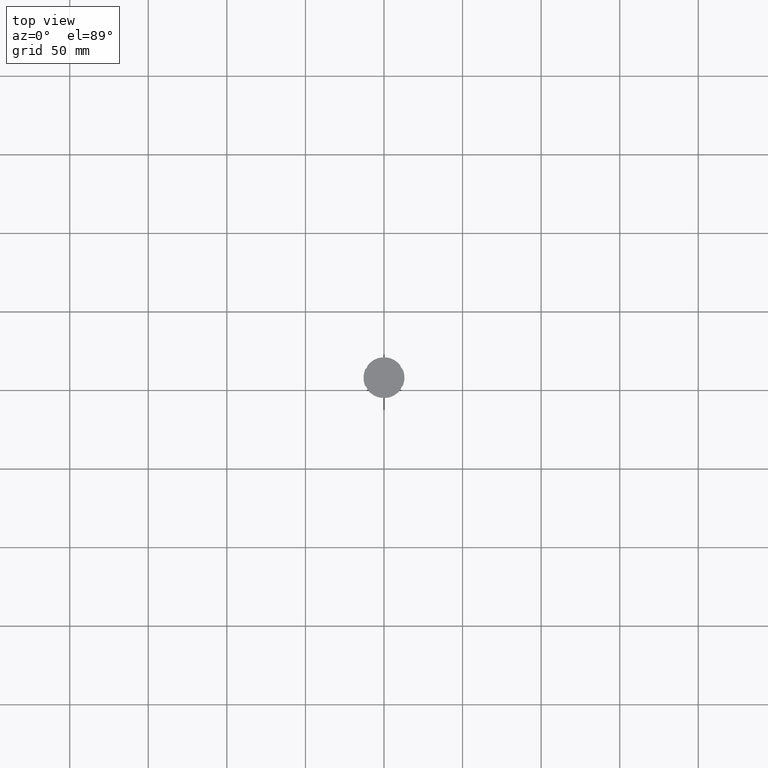
[diagram: clean part render]
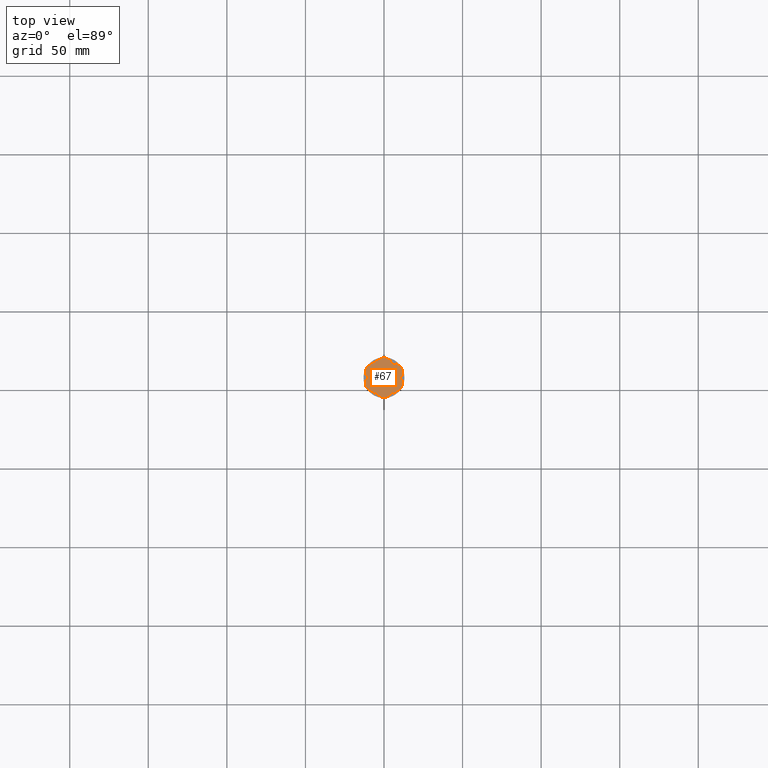
[diagram: same view with one face highlighted and labeled with its STEP entity id]
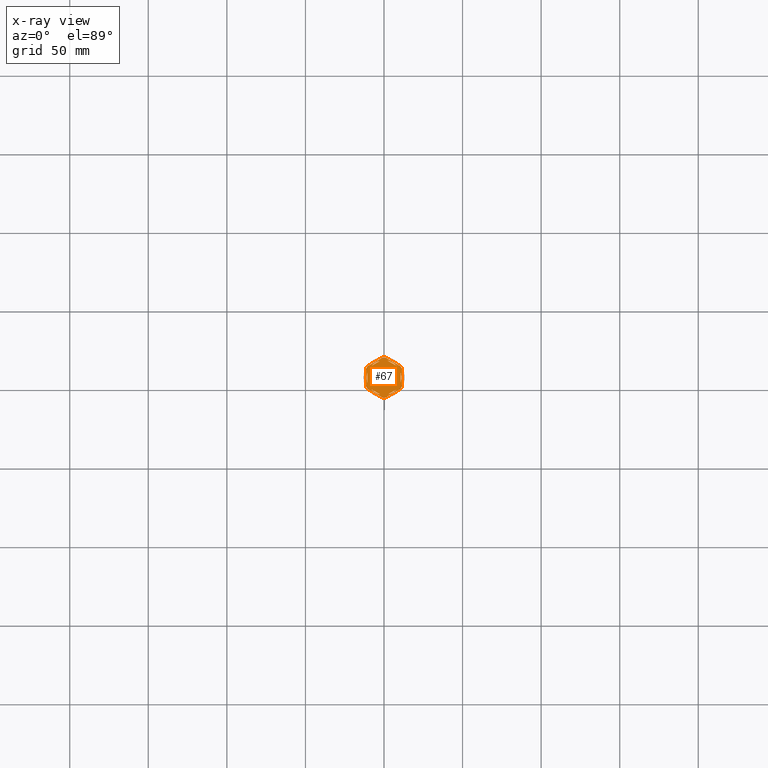
[diagram: x-ray of the same camera — body ghosted, the highlighted face saturated]
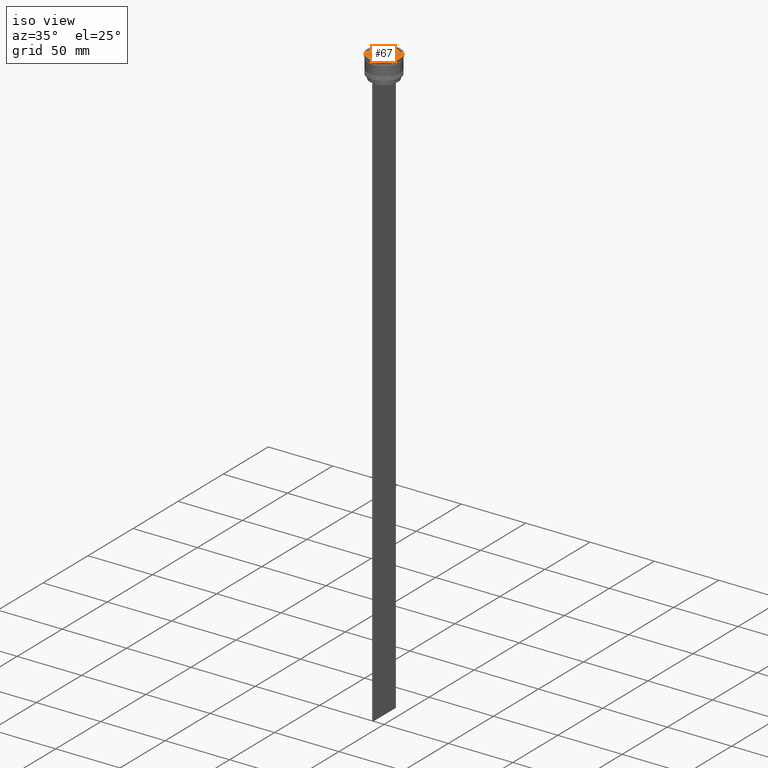
[diagram: same view with one face highlighted and labeled with its STEP entity id]
A machine part, top view. The second image highlights one B-rep face of the part: STEP entity #67.
The next image is the same camera in x-ray: the body ghosted, the highlighted face saturated — about 0% of this face is hidden behind the body in this view.
A second angle (iso view) of the same face is appended — the face is thin or edge-on in the first view.
In plain terms, the highlighted planar face has unit normal (0, 0, 1).
Its self-contained STEP definition (entity closure, byte-faithful):
#3 = VECTOR ( 'NONE', #314, 1000.000000000000000 ) ;
#11 = CARTESIAN_POINT ( 'NONE',  ( 2.410545827099861871, 10.73262637081210791, -1.000000000000000888 ) ) ;
#12 = VECTOR ( 'NONE', #2686, 999.9999999999998863 ) ;
#23 = CARTESIAN_POINT ( 'NONE',  ( 2.410545827099865868, -10.73262637081210791, -1.000000000000000888 ) ) ;
#28 = EDGE_LOOP ( 'NONE', ( #2410, #2710, #1000, #2122, #1527, #2747, #1145, #1912, #1763, #1074, #2809, #438 ) ) ;
#42 = EDGE_CURVE ( 'NONE', #2401, #1849, #214, .T. ) ;
#47 = AXIS2_PLACEMENT_3D ( 'NONE', #2112, #107, #1681 ) ;
#50 = DIRECTION ( 'NONE',  ( 1.000000000000000000, -1.776356839400250465E-14, 0.000000000000000000 ) ) ;
#61 = VECTOR ( 'NONE', #1298, 1000.000000000000000 ) ;
#67 = ADVANCED_FACE ( 'NONE', ( #1668, #829, #580, #2344, #2598, #387, #2358 ), #137, .T. ) ;
#89 = DIRECTION ( 'NONE',  ( 1.000000000000000000, 0.000000000000000000, 0.000000000000000000 ) ) ;
#92 = EDGE_LOOP ( 'NONE', ( #599, #131 ) ) ;
#94 = CARTESIAN_POINT ( 'NONE',  ( 11.49999999999999822, -5.388877434122996135, -1.000000000000000000 ) ) ;
#107 = DIRECTION ( 'NONE',  ( -0.000000000000000000, -0.000000000000000000, -1.000000000000000000 ) ) ;
#120 = ORIENTED_EDGE ( 'NONE', *, *, #1487, .F. ) ;
#129 = CARTESIAN_POINT ( 'NONE',  ( -2.410545827099867200, 10.73262637081210613, -1.000000000000000888 ) ) ;
#131 = ORIENTED_EDGE ( 'NONE', *, *, #2383, .F. ) ;
#137 = PLANE ( 'NONE',  #1565 ) ;
#154 = CARTESIAN_POINT ( 'NONE',  ( 0.000000000000000000, 0.000000000000000000, -1.000000000000000000 ) ) ;
#161 = ORIENTED_EDGE ( 'NONE', *, *, #803, .F. ) ;
#165 = VERTEX_POINT ( 'NONE', #2639 ) ;
#187 = EDGE_CURVE ( 'NONE', #2468, #165, #1100, .T. ) ;
#204 = AXIS2_PLACEMENT_3D ( 'NONE', #2026, #691, #2238 ) ;
#212 = DIRECTION ( 'NONE',  ( -0.8660254037844385966, -0.5000000000000001110, 0.000000000000000000 ) ) ;
#214 = CIRCLE ( 'NONE', #1994, 12.69999999999999929 ) ;
#217 = CARTESIAN_POINT ( 'NONE',  ( 0.000000000000000000, 0.000000000000000000, -1.000000000000000000 ) ) ;
#229 = CARTESIAN_POINT ( 'NONE',  ( 0.000000000000000000, 0.000000000000000000, -1.000000000000000000 ) ) ;
#314 = DIRECTION ( 'NONE',  ( 1.306360520641008153E-16, 1.000000000000000000, 0.000000000000000000 ) ) ;
#321 = CARTESIAN_POINT ( 'NONE',  ( 10.41690475583121156, 7.264853426459550789, -1.000000000000000000 ) ) ;
#326 = CARTESIAN_POINT ( 'NONE',  ( 0.000000000000000000, 0.000000000000000000, -1.000000000000000000 ) ) ;
#339 = AXIS2_PLACEMENT_3D ( 'NONE', #2371, #2586, #390 ) ;
#343 = DIRECTION ( 'NONE',  ( 0.000000000000000000, 0.000000000000000000, 1.000000000000000000 ) ) ;
#344 = DIRECTION ( 'NONE',  ( -0.8660254037844388186, 0.4999999999999997224, 0.000000000000000000 ) ) ;
#360 = DIRECTION ( 'NONE',  ( 0.000000000000000000, 0.000000000000000000, 1.000000000000000000 ) ) ;
#378 = DIRECTION ( 'NONE',  ( 0.000000000000000000, 0.000000000000000000, 1.000000000000000000 ) ) ;
#380 = VECTOR ( 'NONE', #2680, 1000.000000000000227 ) ;
#387 = FACE_BOUND ( 'NONE', #1864, .T. ) ;
#390 = DIRECTION ( 'NONE',  ( 1.000000000000000000, 0.000000000000000000, 0.000000000000000000 ) ) ;
#434 = AXIS2_PLACEMENT_3D ( 'NONE', #326, #2674, #466 ) ;
#438 = ORIENTED_EDGE ( 'NONE', *, *, #42, .F. ) ;
#449 = EDGE_CURVE ( 'NONE', #1295, #1116, #1731, .T. ) ;
#455 = LINE ( 'NONE', #2542, #12 ) ;
#466 = DIRECTION ( 'NONE',  ( 1.000000000000000000, 0.000000000000000000, 0.000000000000000000 ) ) ;
#471 = AXIS2_PLACEMENT_3D ( 'NONE', #2752, #548, #50 ) ;
#478 = VERTEX_POINT ( 'NONE', #557 ) ;
#500 = CARTESIAN_POINT ( 'NONE',  ( 0.000000000000000000, 0.000000000000000000, -1.000000000000000000 ) ) ;
#514 = VECTOR ( 'NONE', #1006, 1000.000000000000000 ) ;
#539 = ORIENTED_EDGE ( 'NONE', *, *, #2500, .F. ) ;
#548 = DIRECTION ( 'NONE',  ( -0.000000000000000000, -0.000000000000000000, -1.000000000000000000 ) ) ;
#557 = CARTESIAN_POINT ( 'NONE',  ( 11.49999999999999822, 5.388877434122992582, -1.000000000000000000 ) ) ;
#561 = LINE ( 'NONE', #1733, #1782 ) ;
#566 = ORIENTED_EDGE ( 'NONE', *, *, #187, .F. ) ;
#580 = FACE_BOUND ( 'NONE', #1726, .T. ) ;
#599 = ORIENTED_EDGE ( 'NONE', *, *, #2404, .F. ) ;
#609 = LINE ( 'NONE', #1934, #514 ) ;
#616 = AXIS2_PLACEMENT_3D ( 'NONE', #2683, #2208, #2431 ) ;
#644 = DIRECTION ( 'NONE',  ( 1.000000000000000000, 7.105427357601001859E-15, 0.000000000000000000 ) ) ;
#684 = CARTESIAN_POINT ( 'NONE',  ( 0.000000000000000000, 13.27905619136138959, -1.000000000000000000 ) ) ;
#691 = DIRECTION ( 'NONE',  ( 0.000000000000000000, 0.000000000000000000, 1.000000000000000000 ) ) ;
#742 = CARTESIAN_POINT ( 'NONE',  ( -8.089454172900133244, -7.453907108661111280, -1.000000000000000888 ) ) ;
#753 = LINE ( 'NONE', #1433, #3 ) ;
#759 = VECTOR ( 'NONE', #2528, 1000.000000000000000 ) ;
#785 = DIRECTION ( 'NONE',  ( 1.000000000000000000, 0.000000000000000000, 0.000000000000000000 ) ) ;
#803 = EDGE_CURVE ( 'NONE', #1500, #1185, #2021, .T. ) ;
#826 = VERTEX_POINT ( 'NONE', #129 ) ;
#829 = FACE_BOUND ( 'NONE', #1169, .T. ) ;
#849 = AXIS2_PLACEMENT_3D ( 'NONE', #1290, #378, #2827 ) ;
#898 = CARTESIAN_POINT ( 'NONE',  ( 8.089454172900135021, -7.453907108661109504, -1.000000000000000888 ) ) ;
#909 = CARTESIAN_POINT ( 'NONE',  ( -2.410545827099876082, -10.73262637081210435, -1.000000000000000888 ) ) ;
#950 = CARTESIAN_POINT ( 'NONE',  ( -11.50000000000000000, -5.388877434122992582, -1.000000000000000000 ) ) ;
#955 = ORIENTED_EDGE ( 'NONE', *, *, #2613, .F. ) ;
#956 = EDGE_CURVE ( 'NONE', #1237, #2304, #2200, .T. ) ;
#958 = CARTESIAN_POINT ( 'NONE',  ( -10.41690475583121689, 7.264853426459546348, -1.000000000000000000 ) ) ;
#969 = LINE ( 'NONE', #2735, #759 ) ;
#979 = DIRECTION ( 'NONE',  ( 0.000000000000000000, 0.000000000000000000, 1.000000000000000000 ) ) ;
#982 = ORIENTED_EDGE ( 'NONE', *, *, #2054, .F. ) ;
#992 = VERTEX_POINT ( 'NONE', #11 ) ;
#993 = AXIS2_PLACEMENT_3D ( 'NONE', #229, #2465, #1768 ) ;
#1000 = ORIENTED_EDGE ( 'NONE', *, *, #1265, .T. ) ;
#1006 = DIRECTION ( 'NONE',  ( -0.8660254037844384856, 0.5000000000000002220, 0.000000000000000000 ) ) ;
#1074 = ORIENTED_EDGE ( 'NONE', *, *, #2388, .F. ) ;
#1091 = CIRCLE ( 'NONE', #434, 12.69999999999999929 ) ;
#1100 = CIRCLE ( 'NONE', #2530, 11.00000000000000000 ) ;
#1116 = VERTEX_POINT ( 'NONE', #958 ) ;
#1129 = EDGE_CURVE ( 'NONE', #2401, #478, #753, .T. ) ;
#1145 = ORIENTED_EDGE ( 'NONE', *, *, #2352, .T. ) ;
#1164 = CARTESIAN_POINT ( 'NONE',  ( 10.49999999999999467, -3.278719262151014835, -1.000000000000000888 ) ) ;
#1169 = EDGE_LOOP ( 'NONE', ( #161, #539 ) ) ;
#1184 = EDGE_CURVE ( 'NONE', #1623, #478, #2608, .T. ) ;
#1185 = VERTEX_POINT ( 'NONE', #1447 ) ;
#1193 = ORIENTED_EDGE ( 'NONE', *, *, #1571, .F. ) ;
#1204 = ORIENTED_EDGE ( 'NONE', *, *, #1249, .F. ) ;
#1211 = CARTESIAN_POINT ( 'NONE',  ( 1.083095244168781557, 12.65373086058254160, -1.000000000000000000 ) ) ;
#1225 = CIRCLE ( 'NONE', #2426, 11.00000000000000000 ) ;
#1231 = VECTOR ( 'NONE', #2446, 1000.000000000000114 ) ;
#1237 = VERTEX_POINT ( 'NONE', #2776 ) ;
#1249 = EDGE_CURVE ( 'NONE', #2030, #2035, #609, .T. ) ;
#1256 = VERTEX_POINT ( 'NONE', #2161 ) ;
#1265 = EDGE_CURVE ( 'NONE', #1623, #2304, #561, .T. ) ;
#1277 = CARTESIAN_POINT ( 'NONE',  ( 8.089454172900138573, 7.453907108661105063, -1.000000000000000888 ) ) ;
#1278 = CIRCLE ( 'NONE', #2073, 11.00000000000000000 ) ;
#1287 = ORIENTED_EDGE ( 'NONE', *, *, #2464, .F. ) ;
#1290 = CARTESIAN_POINT ( 'NONE',  ( 0.000000000000000000, 0.000000000000000000, -1.000000000000000000 ) ) ;
#1295 = VERTEX_POINT ( 'NONE', #2134 ) ;
#1298 = DIRECTION ( 'NONE',  ( -1.430775808321104180E-16, -1.000000000000000000, 0.000000000000000000 ) ) ;
#1316 = CIRCLE ( 'NONE', #2020, 12.69999999999999929 ) ;
#1410 = VECTOR ( 'NONE', #212, 1000.000000000000114 ) ;
#1421 = VERTEX_POINT ( 'NONE', #898 ) ;
#1433 = CARTESIAN_POINT ( 'NONE',  ( 11.49999999999999822, -6.639528095680694797, -1.000000000000000000 ) ) ;
#1446 = EDGE_CURVE ( 'NONE', #1256, #2266, #1815, .T. ) ;
#1447 = CARTESIAN_POINT ( 'NONE',  ( 10.49999999999999467, 3.278719262151012170, -1.000000000000000888 ) ) ;
#1449 = EDGE_CURVE ( 'NONE', #1256, #1948, #1316, .T. ) ;
#1454 = LINE ( 'NONE', #1900, #1933 ) ;
#1479 = DIRECTION ( 'NONE',  ( 1.000000000000000000, 0.000000000000000000, 0.000000000000000000 ) ) ;
#1482 = CARTESIAN_POINT ( 'NONE',  ( -10.49999999999999822, 3.278719262151000624, -1.000000000000000888 ) ) ;
#1487 = EDGE_CURVE ( 'NONE', #2035, #2030, #1225, .T. ) ;
#1500 = VERTEX_POINT ( 'NONE', #1164 ) ;
#1516 = CIRCLE ( 'NONE', #339, 11.00000000000000000 ) ;
#1521 = CARTESIAN_POINT ( 'NONE',  ( 0.000000000000000000, 0.000000000000000000, -1.000000000000000000 ) ) ;
#1523 = CARTESIAN_POINT ( 'NONE',  ( 0.000000000000000000, 0.000000000000000000, -1.000000000000000000 ) ) ;
#1527 = ORIENTED_EDGE ( 'NONE', *, *, #1770, .T. ) ;
#1565 = AXIS2_PLACEMENT_3D ( 'NONE', #154, #343, #2550 ) ;
#1571 = EDGE_CURVE ( 'NONE', #1421, #2684, #2296, .T. ) ;
#1623 = VERTEX_POINT ( 'NONE', #321 ) ;
#1632 = VERTEX_POINT ( 'NONE', #2582 ) ;
#1642 = CARTESIAN_POINT ( 'NONE',  ( -2.602085213965210642E-15, -12.12435565298214080, -1.000000000000000888 ) ) ;
#1646 = EDGE_LOOP ( 'NONE', ( #120, #1204 ) ) ;
#1668 = FACE_BOUND ( 'NONE', #92, .T. ) ;
#1681 = DIRECTION ( 'NONE',  ( 1.000000000000000000, 0.000000000000000000, 0.000000000000000000 ) ) ;
#1689 = VECTOR ( 'NONE', #2315, 1000.000000000000000 ) ;
#1726 = EDGE_LOOP ( 'NONE', ( #2192, #1193 ) ) ;
#1731 = CIRCLE ( 'NONE', #47, 12.69999999999999929 ) ;
#1733 = CARTESIAN_POINT ( 'NONE',  ( 11.50000000000000000, 6.639528095680698350, -1.000000000000000000 ) ) ;
#1760 = CARTESIAN_POINT ( 'NONE',  ( -1.083095244168779780, -12.65373086058253982, -1.000000000000000000 ) ) ;
#1763 = ORIENTED_EDGE ( 'NONE', *, *, #1446, .T. ) ;
#1768 = DIRECTION ( 'NONE',  ( 1.000000000000000000, 0.000000000000000000, 0.000000000000000000 ) ) ;
#1770 = EDGE_CURVE ( 'NONE', #1237, #1116, #2409, .T. ) ;
#1782 = VECTOR ( 'NONE', #344, 1000.000000000000000 ) ;
#1809 = EDGE_LOOP ( 'NONE', ( #566, #982, #955 ) ) ;
#1815 = LINE ( 'NONE', #2002, #380 ) ;
#1849 = VERTEX_POINT ( 'NONE', #2821 ) ;
#1864 = EDGE_LOOP ( 'NONE', ( #1980, #1287 ) ) ;
#1900 = CARTESIAN_POINT ( 'NONE',  ( -10.49999999999999822, 6.062177826491068622, -1.000000000000000888 ) ) ;
#1912 = ORIENTED_EDGE ( 'NONE', *, *, #1449, .F. ) ;
#1933 = VECTOR ( 'NONE', #2594, 1000.000000000000000 ) ;
#1934 = CARTESIAN_POINT ( 'NONE',  ( -10.49999999999999822, -6.062177826491068622, -1.000000000000000888 ) ) ;
#1948 = VERTEX_POINT ( 'NONE', #950 ) ;
#1980 = ORIENTED_EDGE ( 'NONE', *, *, #2520, .F. ) ;
#1994 = AXIS2_PLACEMENT_3D ( 'NONE', #2540, #2775, #1479 ) ;
#2001 = DIRECTION ( 'NONE',  ( 1.000000000000000000, 0.000000000000000000, 0.000000000000000000 ) ) ;
#2002 = CARTESIAN_POINT ( 'NONE',  ( -11.50000000000000000, -6.639528095680696573, -1.000000000000000000 ) ) ;
#2020 = AXIS2_PLACEMENT_3D ( 'NONE', #1521, #2845, #644 ) ;
#2021 = CIRCLE ( 'NONE', #849, 11.00000000000000000 ) ;
#2026 = CARTESIAN_POINT ( 'NONE',  ( 0.000000000000000000, 0.000000000000000000, -1.000000000000000000 ) ) ;
#2030 = VERTEX_POINT ( 'NONE', #909 ) ;
#2035 = VERTEX_POINT ( 'NONE', #742 ) ;
#2054 = EDGE_CURVE ( 'NONE', #1632, #2468, #1454, .T. ) ;
#2073 = AXIS2_PLACEMENT_3D ( 'NONE', #1523, #360, #785 ) ;
#2112 = CARTESIAN_POINT ( 'NONE',  ( 0.000000000000000000, 0.000000000000000000, -1.000000000000000000 ) ) ;
#2119 = LINE ( 'NONE', #2251, #1231 ) ;
#2122 = ORIENTED_EDGE ( 'NONE', *, *, #956, .F. ) ;
#2134 = CARTESIAN_POINT ( 'NONE',  ( -11.50000000000000000, 5.388877434122992582, -1.000000000000000000 ) ) ;
#2161 = CARTESIAN_POINT ( 'NONE',  ( -10.41690475583121334, -7.264853426459548125, -1.000000000000000000 ) ) ;
#2163 = CARTESIAN_POINT ( 'NONE',  ( 10.49999999999999289, -6.062177826491073063, -1.000000000000000888 ) ) ;
#2192 = ORIENTED_EDGE ( 'NONE', *, *, #2538, .F. ) ;
#2200 = CIRCLE ( 'NONE', #616, 12.69999999999999929 ) ;
#2208 = DIRECTION ( 'NONE',  ( -0.000000000000000000, -0.000000000000000000, -1.000000000000000000 ) ) ;
#2238 = DIRECTION ( 'NONE',  ( 1.000000000000000000, 0.000000000000000000, 0.000000000000000000 ) ) ;
#2251 = CARTESIAN_POINT ( 'NONE',  ( 5.612359739892467248E-18, -13.27905619136138959, -1.000000000000000000 ) ) ;
#2266 = VERTEX_POINT ( 'NONE', #1760 ) ;
#2269 = DIRECTION ( 'NONE',  ( -0.8660254037844387076, -0.4999999999999999445, 0.000000000000000000 ) ) ;
#2273 = VERTEX_POINT ( 'NONE', #1277 ) ;
#2296 = LINE ( 'NONE', #1642, #2382 ) ;
#2304 = VERTEX_POINT ( 'NONE', #1211 ) ;
#2315 = DIRECTION ( 'NONE',  ( 0.000000000000000000, -1.000000000000000000, 0.000000000000000000 ) ) ;
#2327 = CARTESIAN_POINT ( 'NONE',  ( -11.50000000000000000, 6.639528095680691244, -1.000000000000000000 ) ) ;
#2330 = EDGE_CURVE ( 'NONE', #2519, #1849, #2119, .T. ) ;
#2344 = FACE_BOUND ( 'NONE', #1646, .T. ) ;
#2346 = CARTESIAN_POINT ( 'NONE',  ( -8.089454172900135021, 7.453907108661106840, -1.000000000000000888 ) ) ;
#2352 = EDGE_CURVE ( 'NONE', #1295, #1948, #2768, .T. ) ;
#2358 = FACE_OUTER_BOUND ( 'NONE', #28, .T. ) ;
#2371 = CARTESIAN_POINT ( 'NONE',  ( 0.000000000000000000, 0.000000000000000000, -1.000000000000000000 ) ) ;
#2382 = VECTOR ( 'NONE', #2269, 999.9999999999998863 ) ;
#2383 = EDGE_CURVE ( 'NONE', #992, #2273, #455, .T. ) ;
#2388 = EDGE_CURVE ( 'NONE', #2519, #2266, #1091, .T. ) ;
#2401 = VERTEX_POINT ( 'NONE', #94 ) ;
#2404 = EDGE_CURVE ( 'NONE', #2273, #992, #2703, .T. ) ;
#2409 = LINE ( 'NONE', #684, #1410 ) ;
#2410 = ORIENTED_EDGE ( 'NONE', *, *, #1129, .T. ) ;
#2426 = AXIS2_PLACEMENT_3D ( 'NONE', #500, #979, #89 ) ;
#2431 = DIRECTION ( 'NONE',  ( 1.000000000000000000, 1.243449787580175325E-14, 0.000000000000000000 ) ) ;
#2446 = DIRECTION ( 'NONE',  ( 0.8660254037844385966, 0.4999999999999999445, 0.000000000000000000 ) ) ;
#2464 = EDGE_CURVE ( 'NONE', #2588, #826, #969, .T. ) ;
#2465 = DIRECTION ( 'NONE',  ( 0.000000000000000000, 0.000000000000000000, 1.000000000000000000 ) ) ;
#2468 = VERTEX_POINT ( 'NONE', #1482 ) ;
#2500 = EDGE_CURVE ( 'NONE', #1185, #1500, #2617, .T. ) ;
#2519 = VERTEX_POINT ( 'NONE', #2798 ) ;
#2520 = EDGE_CURVE ( 'NONE', #826, #2588, #1278, .T. ) ;
#2528 = DIRECTION ( 'NONE',  ( 0.8660254037844385966, 0.5000000000000001110, -0.000000000000000000 ) ) ;
#2530 = AXIS2_PLACEMENT_3D ( 'NONE', #217, #2614, #2001 ) ;
#2538 = EDGE_CURVE ( 'NONE', #2684, #1421, #1516, .T. ) ;
#2540 = CARTESIAN_POINT ( 'NONE',  ( 0.000000000000000000, 0.000000000000000000, -1.000000000000000000 ) ) ;
#2542 = CARTESIAN_POINT ( 'NONE',  ( 10.49999999999999467, 6.062177826491072175, -1.000000000000000888 ) ) ;
#2550 = DIRECTION ( 'NONE',  ( 1.000000000000000000, 0.000000000000000000, -0.000000000000000000 ) ) ;
#2582 = CARTESIAN_POINT ( 'NONE',  ( -10.49999999999999822, -3.278719262151000624, -1.000000000000000888 ) ) ;
#2586 = DIRECTION ( 'NONE',  ( 0.000000000000000000, 0.000000000000000000, 1.000000000000000000 ) ) ;
#2588 = VERTEX_POINT ( 'NONE', #2346 ) ;
#2594 = DIRECTION ( 'NONE',  ( 0.000000000000000000, 1.000000000000000000, 0.000000000000000000 ) ) ;
#2598 = FACE_BOUND ( 'NONE', #1809, .T. ) ;
#2608 = CIRCLE ( 'NONE', #471, 12.69999999999999929 ) ;
#2613 = EDGE_CURVE ( 'NONE', #165, #1632, #2705, .T. ) ;
#2614 = DIRECTION ( 'NONE',  ( 0.000000000000000000, 0.000000000000000000, 1.000000000000000000 ) ) ;
#2617 = LINE ( 'NONE', #2163, #61 ) ;
#2639 = CARTESIAN_POINT ( 'NONE',  ( -11.00000000000000000, 0.000000000000000000, -1.000000000000000000 ) ) ;
#2674 = DIRECTION ( 'NONE',  ( -0.000000000000000000, -0.000000000000000000, -1.000000000000000000 ) ) ;
#2680 = DIRECTION ( 'NONE',  ( 0.8660254037844387076, -0.4999999999999997780, 0.000000000000000000 ) ) ;
#2683 = CARTESIAN_POINT ( 'NONE',  ( 0.000000000000000000, 0.000000000000000000, -1.000000000000000000 ) ) ;
#2684 = VERTEX_POINT ( 'NONE', #23 ) ;
#2686 = DIRECTION ( 'NONE',  ( 0.8660254037844387076, -0.4999999999999999445, 0.000000000000000000 ) ) ;
#2703 = CIRCLE ( 'NONE', #204, 11.00000000000000000 ) ;
#2705 = CIRCLE ( 'NONE', #993, 11.00000000000000000 ) ;
#2710 = ORIENTED_EDGE ( 'NONE', *, *, #1184, .F. ) ;
#2735 = CARTESIAN_POINT ( 'NONE',  ( -1.734723475976807094E-15, 12.12435565298214080, -1.000000000000000888 ) ) ;
#2747 = ORIENTED_EDGE ( 'NONE', *, *, #449, .F. ) ;
#2752 = CARTESIAN_POINT ( 'NONE',  ( 0.000000000000000000, 0.000000000000000000, -1.000000000000000000 ) ) ;
#2768 = LINE ( 'NONE', #2327, #1689 ) ;
#2775 = DIRECTION ( 'NONE',  ( -0.000000000000000000, -0.000000000000000000, -1.000000000000000000 ) ) ;
#2776 = CARTESIAN_POINT ( 'NONE',  ( -1.083095244168783333, 12.65373086058254160, -1.000000000000000000 ) ) ;
#2798 = CARTESIAN_POINT ( 'NONE',  ( 1.083095244168774673, -12.65373086058253982, -1.000000000000000000 ) ) ;
#2809 = ORIENTED_EDGE ( 'NONE', *, *, #2330, .T. ) ;
#2821 = CARTESIAN_POINT ( 'NONE',  ( 10.41690475583121867, -7.264853426459537467, -1.000000000000000000 ) ) ;
#2827 = DIRECTION ( 'NONE',  ( 1.000000000000000000, 0.000000000000000000, 0.000000000000000000 ) ) ;
#2845 = DIRECTION ( 'NONE',  ( -0.000000000000000000, -0.000000000000000000, -1.000000000000000000 ) ) ;